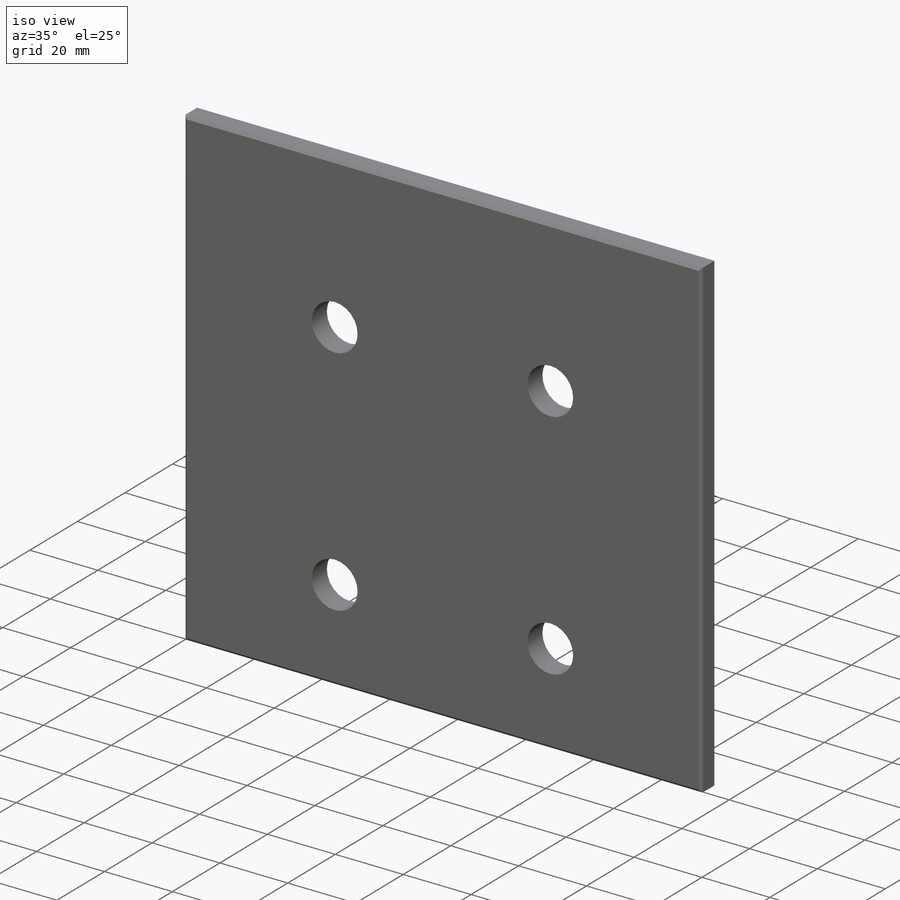
[diagram: iso view]
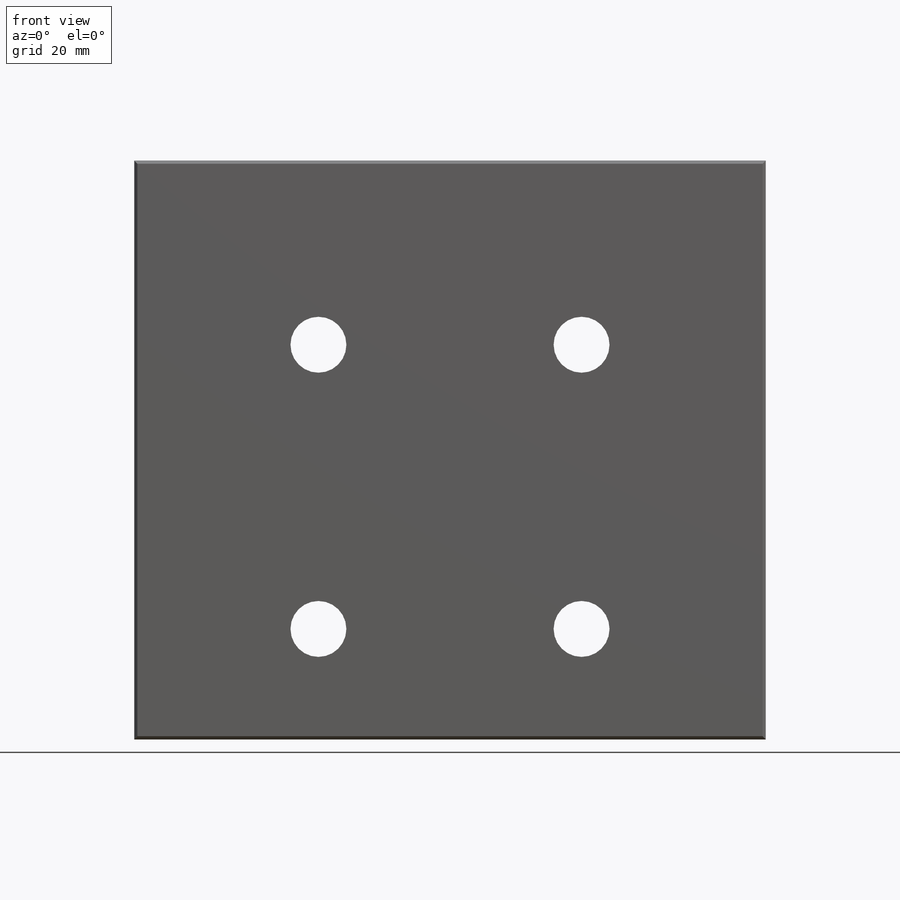
[diagram: front view]
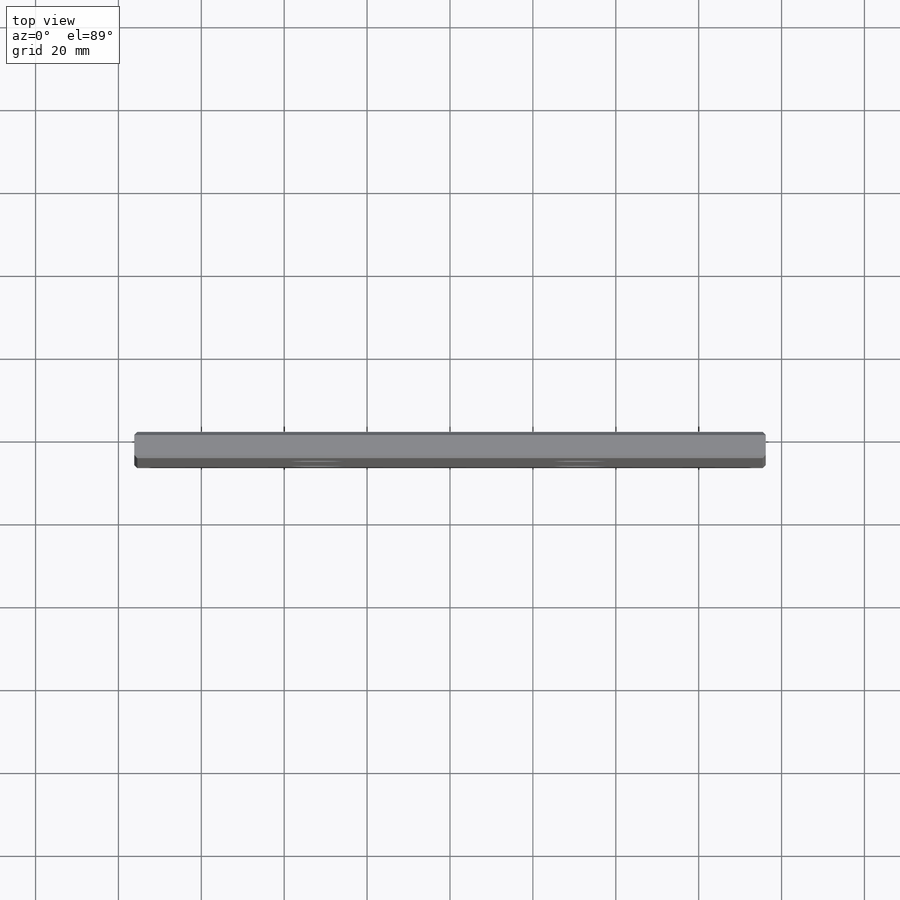
[diagram: top view]
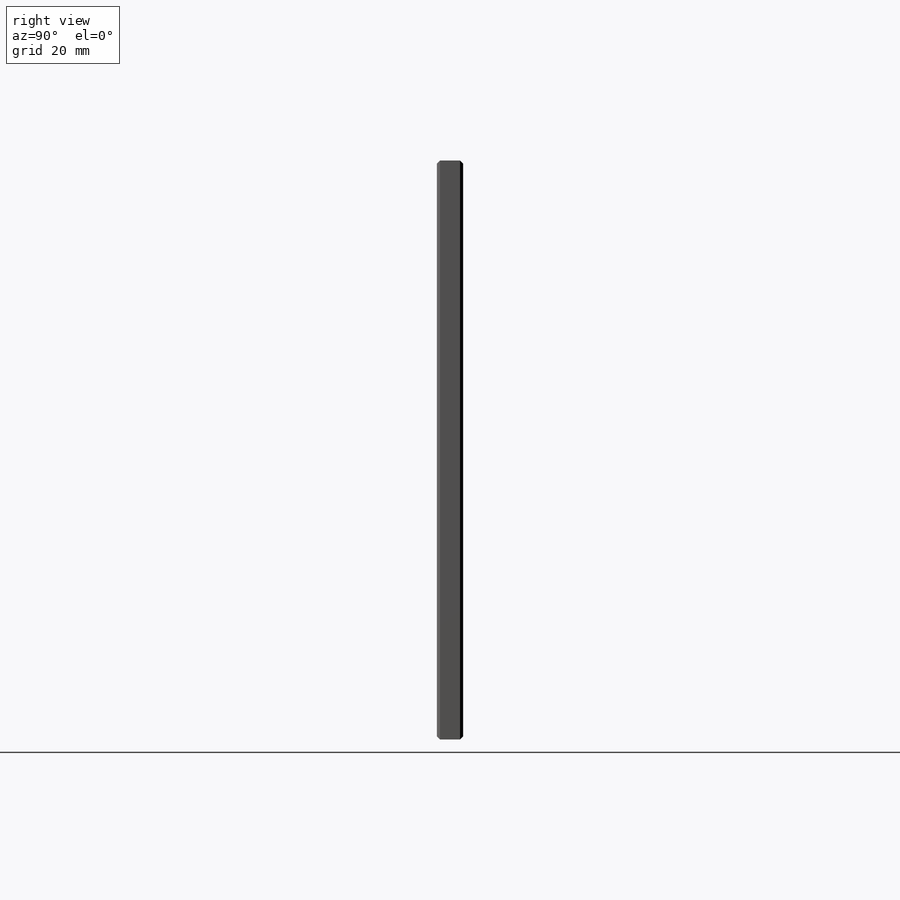
[diagram: right view]
SOLIDWORKS PART (.sldprt)
format: sldprt  version: not decoded by parser v0  size: 202,752 bytes
history: native  units: mm
features: sketch x3, material x1, extrude x1, chamfer x1, hole x1 (+14 scaffold rows collapsed)
feature tree (21):
  scaffold x14  (default folders/planes/origin — collapsed)
  material  "ASTM A36 Steel"
  sketch  "Sketch1"  dims[D1=139.7mm D2=152.4mm D3=50.8mm D4=50.8mm]
  extrude  "Extrude1"  Depth=6.35mm
  chamfer  "Chamfer1"  Distance=0.762mm Angle=45deg
  hole  "1/2 Clearance Hole1"  Diameter=13.49248mm Depth=6.35mm
  sketch  "Sketch3"  dims[D1=44.45mm D2=44.45mm D3=113.03mm]
  sketch  "Sketch2"  dims[hole-wizard template sketch: 59 standard entries collapsed; hole parameters kept: c18.Thru Hole Dia.=~13.49248mm c18.Thru Hole Depth=6.35mm]
decode coverage: 6 of 6 modeling features carry decoded parameters
note: ~ marks probable driven/reference dimensions
note: suppression state not decoded; provenance and decode notes live in map.json
